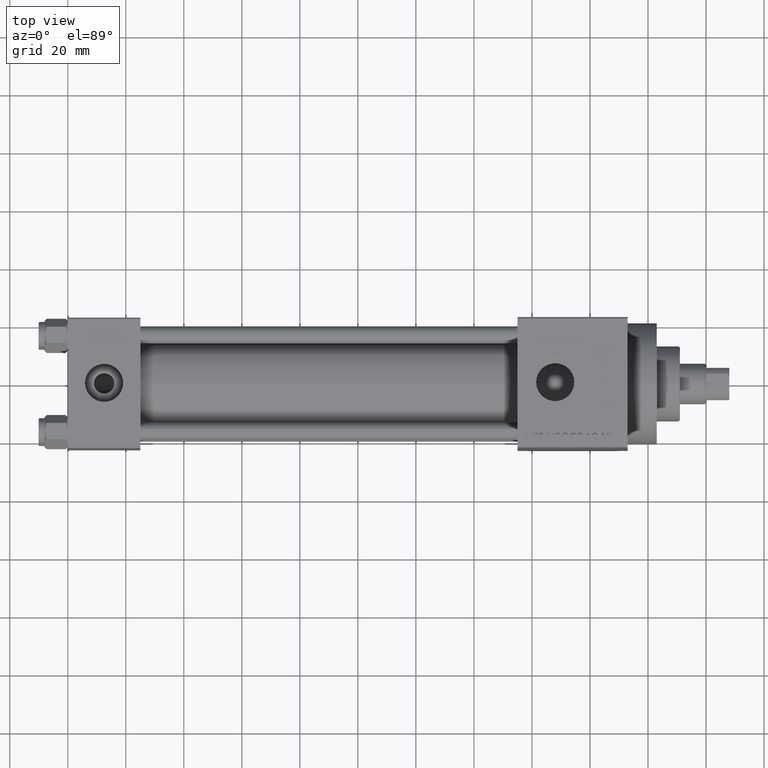
[diagram: clean part render]
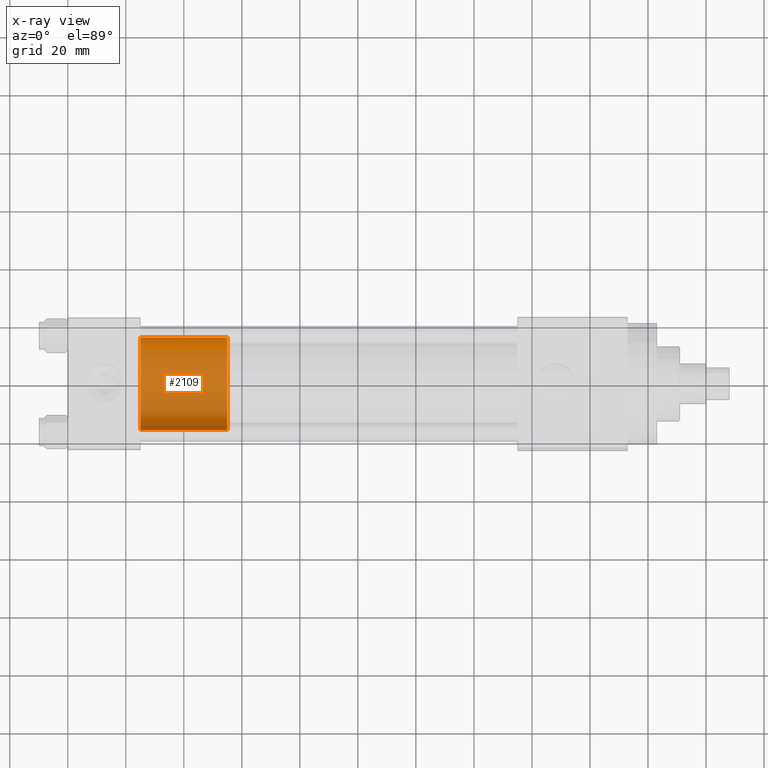
[diagram: x-ray — body ghosted, one internal face saturated and labeled with its STEP entity id]
A machine part, top view, then the same camera in x-ray: the body is ghosted and one INTERNAL B-rep face — a face not visible from any outside direction — is saturated and labeled: STEP entity #2109.
In plain terms, the highlighted cylindrical surface (partial cylindrical patch) has radius 16 mm, axis along (-1, 0, 0).
Its self-contained STEP definition (entity closure, byte-faithful):
#2109 = ADVANCED_FACE ( 'NONE', ( #18238 ), #47187, .T. ) ;
#2583 = EDGE_CURVE ( 'NONE', #11581, #19500, #4811, .T. ) ;
#4371 = DIRECTION ( 'NONE',  ( 1.000000000000000000, 0.000000000000000000, 0.000000000000000000 ) ) ;
#4811 = CIRCLE ( 'NONE', #34629, 16.00000000000000000 ) ;
#5564 = CARTESIAN_POINT ( 'NONE',  ( -16.00000000000000000, 0.000000000000000000, 0.000000000000000000 ) ) ;
#6966 = DIRECTION ( 'NONE',  ( -1.000000000000000000, 0.000000000000000000, 0.000000000000000000 ) ) ;
#9766 = DIRECTION ( 'NONE',  ( -0.000000000000000000, -0.000000000000000000, -1.000000000000000000 ) ) ;
#11581 = VERTEX_POINT ( 'NONE', #46139 ) ;
#12014 = CARTESIAN_POINT ( 'NONE',  ( -16.00000000000000000, 0.000000000000000000, 30.00000000000000000 ) ) ;
#16731 = VERTEX_POINT ( 'NONE', #26108 ) ;
#18238 = FACE_OUTER_BOUND ( 'NONE', #34559, .T. ) ;
#18938 = CIRCLE ( 'NONE', #47191, 16.00000000000000000 ) ;
#19500 = VERTEX_POINT ( 'NONE', #5564 ) ;
#20101 = CARTESIAN_POINT ( 'NONE',  ( 16.00000000000000000, 1.959434878635765131E-15, 30.00000000000000000 ) ) ;
#20436 = VECTOR ( 'NONE', #22556, 1000.000000000000000 ) ;
#21829 = DIRECTION ( 'NONE',  ( 0.000000000000000000, 0.000000000000000000, 1.000000000000000000 ) ) ;
#22509 = ORIENTED_EDGE ( 'NONE', *, *, #2583, .T. ) ;
#22556 = DIRECTION ( 'NONE',  ( -0.000000000000000000, -0.000000000000000000, -1.000000000000000000 ) ) ;
#24103 = DIRECTION ( 'NONE',  ( 0.000000000000000000, 0.000000000000000000, 1.000000000000000000 ) ) ;
#24281 = ORIENTED_EDGE ( 'NONE', *, *, #47330, .F. ) ;
#25457 = VERTEX_POINT ( 'NONE', #26110 ) ;
#26108 = CARTESIAN_POINT ( 'NONE',  ( 16.00000000000000000, 1.959434878635765131E-15, 30.00000000000000000 ) ) ;
#26110 = CARTESIAN_POINT ( 'NONE',  ( -16.00000000000000000, 0.000000000000000000, 30.00000000000000000 ) ) ;
#26386 = LINE ( 'NONE', #12014, #20436 ) ;
#28030 = VECTOR ( 'NONE', #9766, 1000.000000000000000 ) ;
#30892 = LINE ( 'NONE', #20101, #28030 ) ;
#32153 = ORIENTED_EDGE ( 'NONE', *, *, #46103, .T. ) ;
#32376 = DIRECTION ( 'NONE',  ( -0.000000000000000000, -0.000000000000000000, -1.000000000000000000 ) ) ;
#34559 = EDGE_LOOP ( 'NONE', ( #43123, #32153, #22509, #24281 ) ) ;
#34629 = AXIS2_PLACEMENT_3D ( 'NONE', #34908, #24103, #46365 ) ;
#34908 = CARTESIAN_POINT ( 'NONE',  ( 0.000000000000000000, 0.000000000000000000, 0.000000000000000000 ) ) ;
#37184 = CARTESIAN_POINT ( 'NONE',  ( 0.000000000000000000, 0.000000000000000000, 30.00000000000000000 ) ) ;
#42283 = AXIS2_PLACEMENT_3D ( 'NONE', #43373, #32376, #6966 ) ;
#43123 = ORIENTED_EDGE ( 'NONE', *, *, #43523, .F. ) ;
#43373 = CARTESIAN_POINT ( 'NONE',  ( 0.000000000000000000, 0.000000000000000000, 30.00000000000000000 ) ) ;
#43523 = EDGE_CURVE ( 'NONE', #16731, #25457, #18938, .T. ) ;
#46103 = EDGE_CURVE ( 'NONE', #16731, #11581, #30892, .T. ) ;
#46139 = CARTESIAN_POINT ( 'NONE',  ( 16.00000000000000000, 1.959434878635765131E-15, 0.000000000000000000 ) ) ;
#46365 = DIRECTION ( 'NONE',  ( 1.000000000000000000, 0.000000000000000000, 0.000000000000000000 ) ) ;
#47187 = CYLINDRICAL_SURFACE ( 'NONE', #42283, 16.00000000000000000 ) ;
#47191 = AXIS2_PLACEMENT_3D ( 'NONE', #37184, #21829, #4371 ) ;
#47330 = EDGE_CURVE ( 'NONE', #25457, #19500, #26386, .T. ) ;